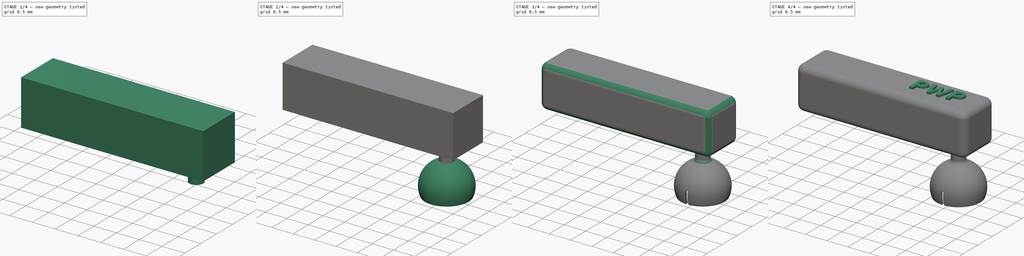
[diagram: build sequence overview — one tinted view per stage of 4, left to right]
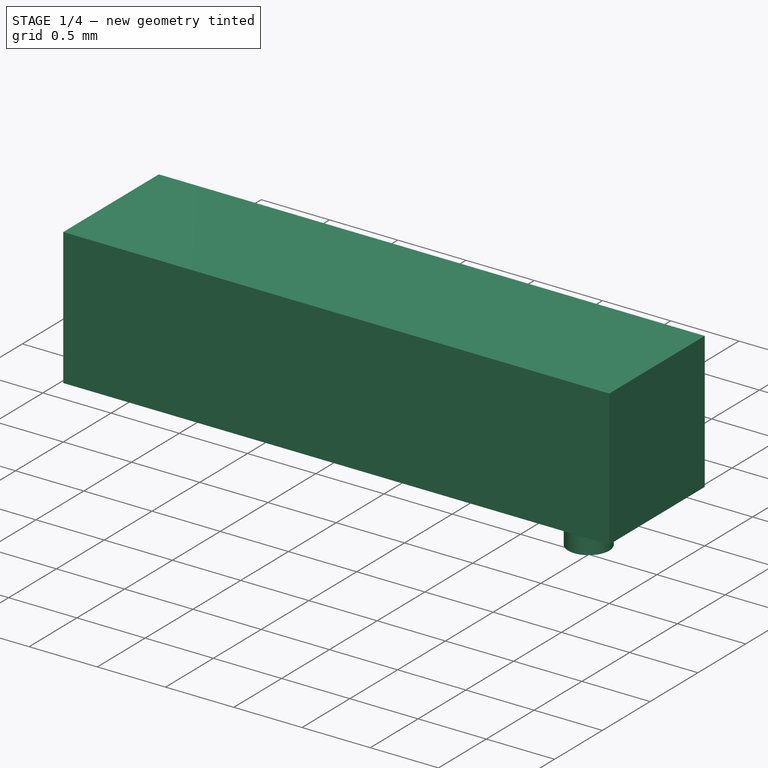
[diagram: stage 1 of 4 — iso view after this stage's code; geometry added in this stage tinted green]
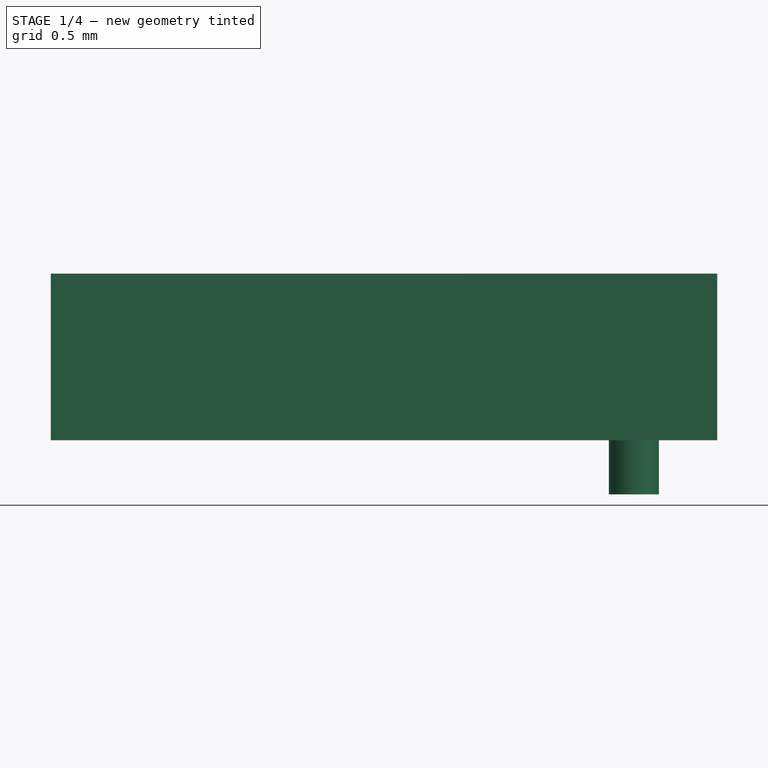
[diagram: stage 1 of 4 — front view after this stage's code; geometry added in this stage tinted green]
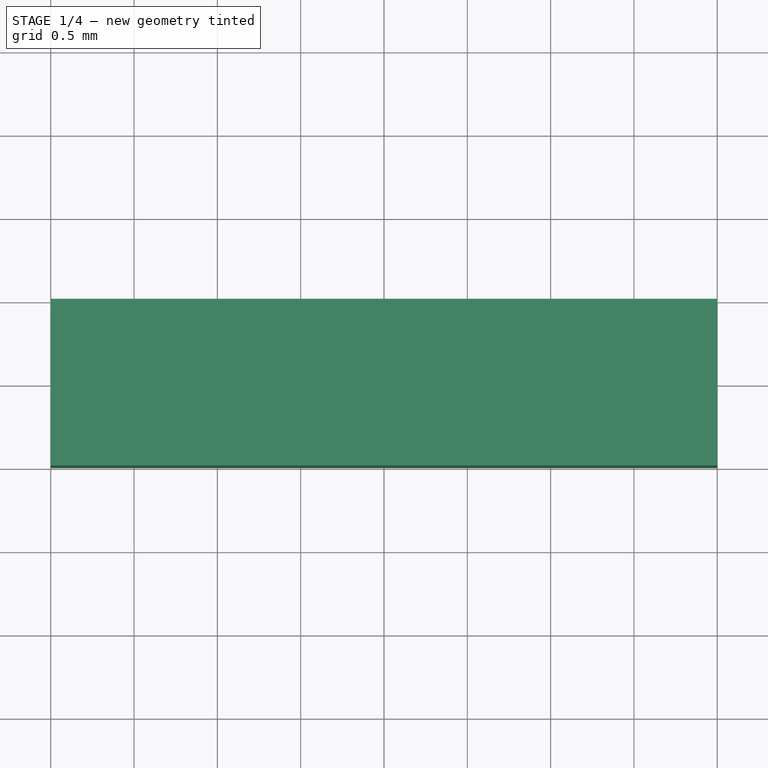
[diagram: stage 1 of 4 — top view after this stage's code; geometry added in this stage tinted green]
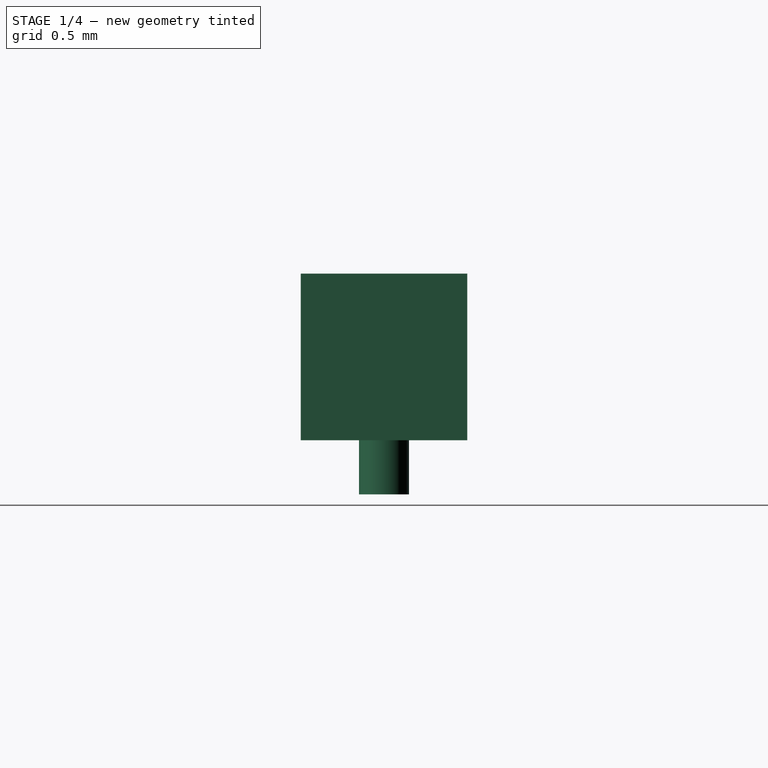
[diagram: stage 1 of 4 — right view after this stage's code; geometry added in this stage tinted green]
FCSTD DOCUMENT  (FreeCAD 0.20R29177 (Git))
Label: pwp
License: All rights reserved
LicenseURL: http://en.wikipedia.org/wiki/All_rights_reserved
objects: Sketcher::SketchObject×5, PartDesign::Line×3, PartDesign::Fillet×3, PartDesign::Pad×2, PartDesign::Revolution×2, Spreadsheet::Sheet×1, PartDesign::Plane×1, PartDesign::Groove×1, PartDesign::Pocket×1, Part::Part2DObjectPython×1, PartDesign::Body×1
note: 29 computed .brp shape members not serialized (recipe doc carries the construction recipe); baked Part::Feature solids carry a one-line shape summary decoded from their .brp

FEATURE [Spreadsheet::Sheet] Spreadsheet
  cells = A2=Design Parameters; A3=RefLength; B3(RefLength)==1mm; A4=Length; B4(Length)==4 * RefLength; A5=Width; B5(Width)==RefLength; A6=Height; B6(Height)==RefLength; A7=BallJointDiam; B7(BallJointDiam)==1 * RefLength; A8=BallJointDiamMargin; B8(BallJointDiamMargin)==0.005 * BallJointDiam; A9=BallJointCupThickness; B9(BallJointCupThickness)==0.05 * RefLength; A10=BallJointCupDiam; B10(BallJointCupDiam)==BallJointDiam + 2 * BallJointDiamMargin; A11=BallJointConnLength; B11(BallJointConnLength)==0.3 * RefLength; A12=BallJointConnDiam; B12(BallJointConnDiam)==0.3 * RefLength; A13=BallJointDatumPlaneOffset; B13(BallJointDatumPlaneOffset)==0.5 * Length - 0.5 * BallJointDiam; A14=BallJointCupRevolveCutAngle; B14(BallJointCupRevolveCutAngle)==135deg; A15=BallJointCupRevolveCutMargin; B15(BallJointCupRevolveCutMargin)==0.1 * RefLength; A16=BallJointCupRevolveCutLength; B16(BallJointCupRevolveCutLength)==0.5 * BallJointDiam + BallJointCupThickness + BallJointCupRevolveCutMargin; A17=BallJointCupSlitWidth; B17(BallJointCupSlitWidth)==0.05 * RefLength; A18=BallJointCupSlitDepth; B18(BallJointCupSlitDepth)==0.1 * RefLength; C18=Depth past midline; A19=EdgeFilletRadius; B19(EdgeFilletRadius)==0.15 * RefLength; A20=BallJointConnFilletRadius; B20(BallJointConnFilletRadius)==0.1 * RefLength; A21=BallJointCupFilletRadius; B21(BallJointCupFilletRadius)==0.012 * RefLength; A22=LabelString; B22(LabelString)=PWP; A23=LabelPadHeight; B23(LabelPadHeight)==0.05 * RefLength
FEATURE [Sketcher::SketchObject] Sketch  label="MainBeamSketch"
  FullyConstrained = true
  MapMode = 5
  Support = -> [XY_Plane]
  expr: Constraints[10] = Spreadsheet.Width
  expr: Constraints[9] = Spreadsheet.Length
  sketch-geometry (4):
    g0: LineSegment StartX=-2 StartY=0.5 StartZ=0 EndX=2 EndY=0.5 EndZ=0
    g1: LineSegment StartX=2 StartY=0.5 StartZ=0 EndX=2 EndY=-0.5 EndZ=0
    g2: LineSegment StartX=2 StartY=-0.5 StartZ=0 EndX=-2 EndY=-0.5 EndZ=0
    g3: LineSegment StartX=-2 StartY=-0.5 StartZ=0 EndX=-2 EndY=0.5 EndZ=0
  constraints (11):
    c: Coincident(g0,g1)
    c: Coincident(g1,g2)
    c: Coincident(g2,g3)
    c: Coincident(g3,g0)
    c: Horizontal(g0)
    c: Horizontal(g2)
    c: Vertical(g1)
    c: Vertical(g3)
    c: Symmetric(g0,g1,g-1)
    c: DistanceX(g2,g2) = 4
    c: DistanceY(g1,g1) = 1
FEATURE [PartDesign::Pad] Pad  label="MainBeamPad"
  Direction = (0,0,1)
  Length = 1
  Length2 = 10
  Midplane = true
  Profile = -> Sketch
  ReferenceAxis = -> Sketch [N_Axis]
  Type = 0
  expr: Length = Spreadsheet.Height
FEATURE [PartDesign::Plane] DatumPlane  label="BallJointDatumPlane"
  AttachmentOffset = pos=(0,0,1.5) rot=(0,0,1;0rad)
  Length = 60
  MapMode = 5
  Placement = pos=(1.5,-3e-16,3e-16) rot=(0.57735,0.57735,0.57735;2.0944rad)
  ResizeMode = 0
  Support = -> [YZ_Plane]
  Width = 60
  expr: .AttachmentOffset.Base.z = Spreadsheet.BallJointDatumPlaneOffset
FEATURE [Sketcher::SketchObject] Sketch001  label="BallJontConnSketch"
  FullyConstrained = true
  MapMode = 5
  Placement = pos=(1.5,-3e-16,3e-16) rot=(0.57735,0.57735,0.57735;2.0944rad)
  Support = -> [DatumPlane]
  expr: Constraints[17] = Spreadsheet.BallJointConnLength
  expr: Constraints[18] = Spreadsheet.BallJointConnDiam * 0.5
  expr: Constraints[19] = Spreadsheet.BallJointCupThickness * 0.5
  expr: Constraints[2] = Spreadsheet.Height * 0.5
  sketch-geometry (7):
    g0: LineSegment StartX=0 StartY=0 StartZ=0 EndX=0 EndY=-0.5 EndZ=0
    g1: LineSegment StartX=0 StartY=-0.5 StartZ=0 EndX=0.15 EndY=-0.5 EndZ=0
    g2: LineSegment StartX=0.15 StartY=-0.5 StartZ=0 EndX=0.15 EndY=-0.8 EndZ=0
    g3: LineSegment StartX=0 StartY=-0.8 StartZ=0 EndX=0 EndY=-0.5 EndZ=0
    g4: LineSegment StartX=0 StartY=-0.8 StartZ=0 EndX=0 EndY=-0.825 EndZ=0
    g5: LineSegment StartX=0 StartY=-0.825 StartZ=0 EndX=0.15 EndY=-0.825 EndZ=0
    g6: LineSegment StartX=0.15 StartY=-0.825 StartZ=0 EndX=0.15 EndY=-0.8 EndZ=0
  constraints (20):
    c: Vertical(g0)
    c: Coincident(g0,g-1)
    c: DistanceY(g0,g0) = 0.5
    c: Coincident(g1,g2)
    c: Coincident(g3,g1)
    c: Horizontal(g1)
    c: Vertical(g2)
    c: Vertical(g3)
    c: Coincident(g1,g0)
    c: Vertical(g4)
    c: Coincident(g4,g5)
    c: Horizontal(g5)
    c: Coincident(g5,g6)
    c: Vertical(g6)
    c: Coincident(g4,g3)
    c: Coincident(g6,g2)
    c: Equal(g3,g2)
    c: DistanceY(g2,g2) = 0.3
    c: DistanceX(g1,g1) = 0.15
    c: DistanceY(g6,g6) = 0.025
FEATURE [PartDesign::Line] DatumLine  label="BallJointConnRevolveDatumLine"
  AttacherType = Attacher::AttachEngineLine
  Length = 20
  MapMode = 29
  Placement = pos=(1.5,-3e-16,3e-16) rot=(0,0,1;0rad)
  ResizeMode = 0
  Support = -> [Sketch001]
FEATURE [PartDesign::Revolution] Revolution  label="BallJointConnRevolution"
  Angle = 360
  Axis = (0,1e-16,1)
  Base = (1.5,-3e-16,3e-16)
  BaseFeature = -> Pad
  Profile = -> Sketch001
  ReferenceAxis = -> DatumLine
  Reversed = true
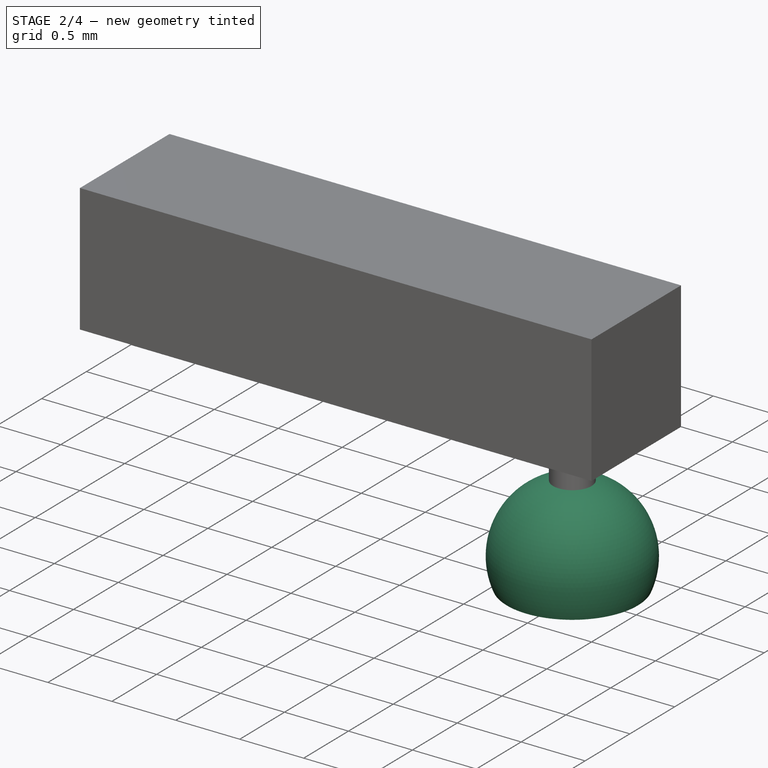
[diagram: stage 2 of 4 — iso view after this stage's code; geometry added in this stage tinted green]
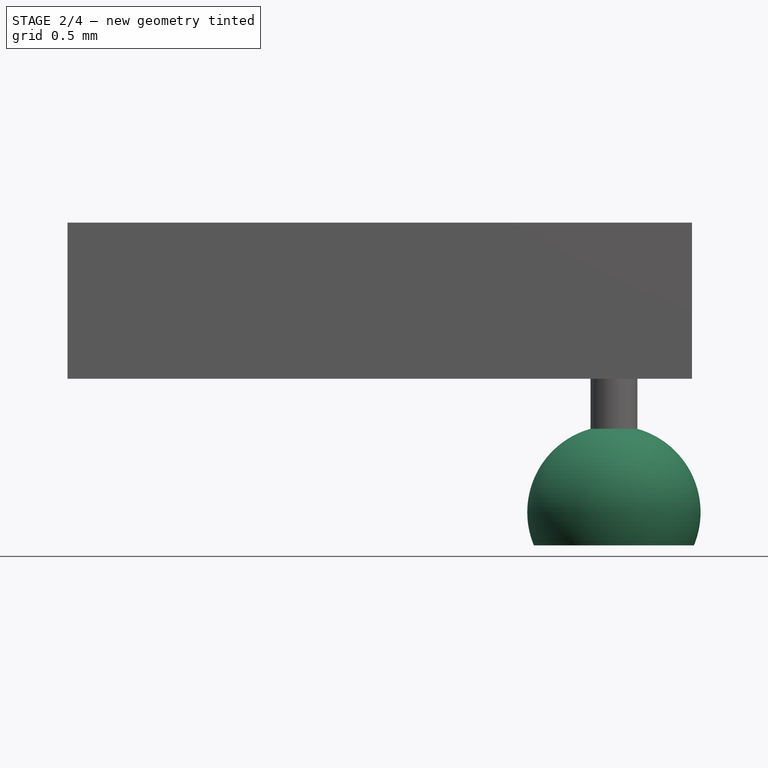
[diagram: stage 2 of 4 — front view after this stage's code; geometry added in this stage tinted green]
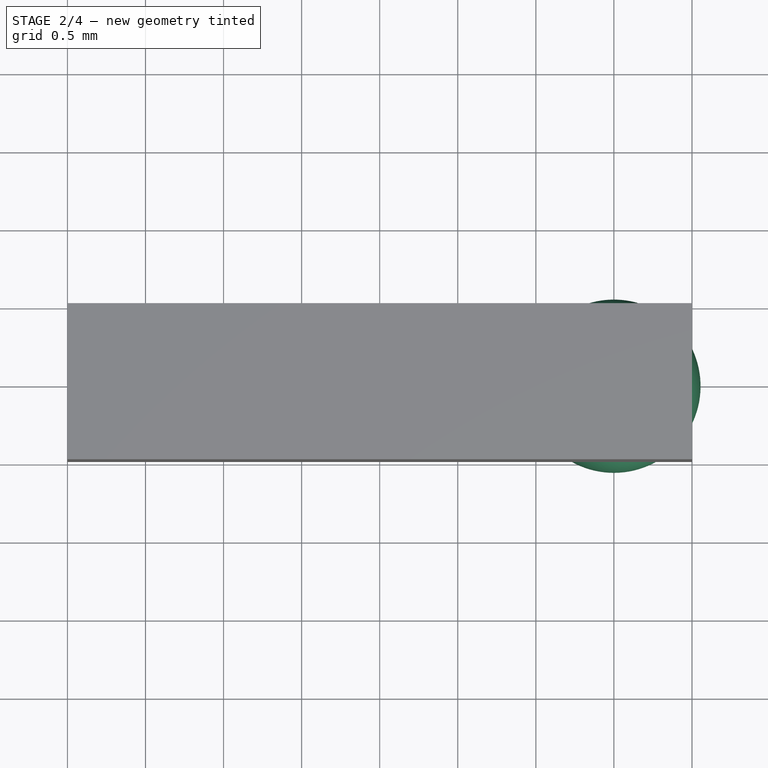
[diagram: stage 2 of 4 — top view after this stage's code; geometry added in this stage tinted green]
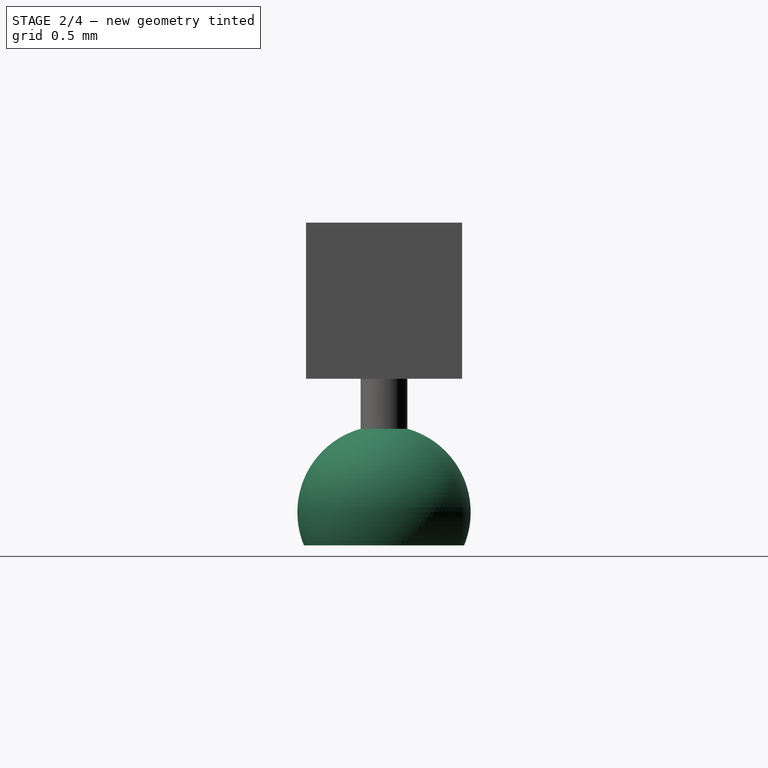
[diagram: stage 2 of 4 — right view after this stage's code; geometry added in this stage tinted green]
FEATURE [Sketcher::SketchObject] Sketch002  label="BallJointCupSketch"
  FullyConstrained = true
  MapMode = 5
  Placement = pos=(1.5,-3e-16,3e-16) rot=(0.57735,0.57735,0.57735;2.0944rad)
  Support = -> [DatumPlane]
  expr: Constraints[14] = Spreadsheet.BallJointCupThickness
  expr: Constraints[17] = Spreadsheet.BallJointCupDiam
  expr: Constraints[2] = Spreadsheet.Height * 0.5
  expr: Constraints[5] = Spreadsheet.BallJointConnLength
  sketch-geometry (6):
    g0: LineSegment StartX=2e-16 StartY=0 StartZ=0 EndX=2e-16 EndY=-0.5 EndZ=0
    g1: LineSegment StartX=2e-16 StartY=-0.5 StartZ=0 EndX=2e-16 EndY=-0.8 EndZ=0
    g2: LineSegment StartX=2e-16 StartY=-0.8 StartZ=0 EndX=2e-16 EndY=-0.85 EndZ=0
    g3: ArcOfCircle CenterX=0 CenterY=-1.355 CenterZ=0 NormalX=0 NormalY=0 NormalZ=1 AngleXU=0 Radius=0.505 StartAngle=4.71239 EndAngle=7.85398
    g4: ArcOfCircle CenterX=0 CenterY=-1.355 CenterZ=0 NormalX=0 NormalY=0 NormalZ=1 AngleXU=0 Radius=0.555 StartAngle=4.71239 EndAngle=7.85398
    g5: LineSegment StartX=-1e-16 StartY=-1.86 StartZ=0 EndX=-1e-16 EndY=-1.91 EndZ=0
  constraints (18):
    c: Vertical(g0)
    c: Coincident(g0,g-1)
    c: DistanceY(g0,g0) = 0.5
    c: Vertical(g1)
    c: Coincident(g1,g0)
    c: DistanceY(g1,g1) = 0.3
    c: Vertical(g2)
    c: Coincident(g1,g2)
    c: PointOnObject(g3,g-2)
    c: Coincident(g3,g2)
    c: PointOnObject(g3,g-2)
    c: Coincident(g3,g4)
    c: Coincident(g4,g2)
    c: PointOnObject(g4,g-2)
    c: DistanceY(g2,g2) = 0.05
    c: Coincident(g5,g3)
    c: Coincident(g5,g4)
    c: DistanceY(g3,g2) = 1.01
FEATURE [PartDesign::Line] DatumLine001  label="BallJointCupRevolveDatumLine"
  AttacherType = Attacher::AttachEngineLine
  Length = 20
  MapMode = 29
  Placement = pos=(1.5,0,3e-16) rot=(0,1,0;3.14159rad)
  ResizeMode = 0
  Support = -> [Sketch002]
FEATURE [PartDesign::Revolution] Revolution001  label="BallJointCupRevolution"
  Angle = 360
  Axis = (2e-16,-4e-16,-1)
  Base = (1.5,0,3e-16)
  BaseFeature = -> Revolution
  Profile = -> Sketch002
  ReferenceAxis = -> DatumLine001
  Reversed = true
FEATURE [Sketcher::SketchObject] Sketch003  label="BallJointRevolveCutSketch"
  FullyConstrained = true
  MapMode = 5
  Placement = pos=(1.5,-3e-16,3e-16) rot=(0.57735,0.57735,0.57735;2.0944rad)
  Support = -> [DatumPlane]
  expr: Constraints[10] = Spreadsheet.BallJointCupThickness
  expr: Constraints[11] = Spreadsheet.BallJointCupDiam * 0.5
  expr: Constraints[18] = Spreadsheet.BallJointCupRevolveCutAngle * 0.5
  expr: Constraints[19] = Spreadsheet.BallJointCupRevolveCutLength
  expr: Constraints[8] = Spreadsheet.Height * 0.5
  expr: Constraints[9] = Spreadsheet.BallJointConnLength
  sketch-geometry (7):
    g0: LineSegment StartX=0 StartY=0 StartZ=0 EndX=0 EndY=-0.5 EndZ=0
    g1: LineSegment StartX=0 StartY=-0.5 StartZ=0 EndX=0 EndY=-0.8 EndZ=0
    g2: LineSegment StartX=0 StartY=-0.8 StartZ=0 EndX=0 EndY=-0.85 EndZ=0
    g3: LineSegment StartX=0 StartY=-0.85 StartZ=0 EndX=0 EndY=-1.355 EndZ=0
    g4: LineSegment StartX=0 StartY=-1.355 StartZ=0 EndX=0 EndY=-1.60374 EndZ=0
    g5: LineSegment StartX=0 StartY=-1.60374 StartZ=0 EndX=0.600522 EndY=-1.60374 EndZ=0
    g6: LineSegment StartX=0.600522 StartY=-1.60374 StartZ=0 EndX=0 EndY=-1.355 EndZ=0
  constraints (20):
    c: Vertical(g0)
    c: Coincident(g0,g1)
    c: Vertical(g1)
    c: Coincident(g1,g2)
    c: Vertical(g2)
    c: Coincident(g2,g3)
    c: Vertical(g3)
    c: Coincident(g0,g-1)
    c: DistanceY(g0,g0) = 0.5
    c: DistanceY(g1,g1) = 0.3
    c: DistanceY(g2,g2) = 0.05
    c: DistanceY(g3,g3) = 0.505
    c: Vertical(g4)
    c: Coincident(g4,g5)
    c: Horizontal(g5)
    c: Coincident(g5,g6)
    c: Coincident(g6,g4)
    c: Coincident(g4,g3)
    c: Angle(g4,g6) = 1.1781
    c: Distance(g6) = 0.65
FEATURE [PartDesign::Line] DatumLine002  label="BallJointRevolveCutDatumLine"
  AttacherType = Attacher::AttachEngineLine
  Length = 20
  MapMode = 29
  Placement = pos=(1.5,-3e-16,2e-16) rot=(0,1,0;3.14159rad)
  ResizeMode = 0
  Support = -> [Sketch003]
FEATURE [PartDesign::Groove] Groove  label="BallJointRevolveCutGroove"
  Angle = 360
  Axis = (0,-1e-16,-1)
  Base = (1.5,-3e-16,2e-16)
  BaseFeature = -> Revolution001
  Profile = -> Sketch003
  ReferenceAxis = -> DatumLine002
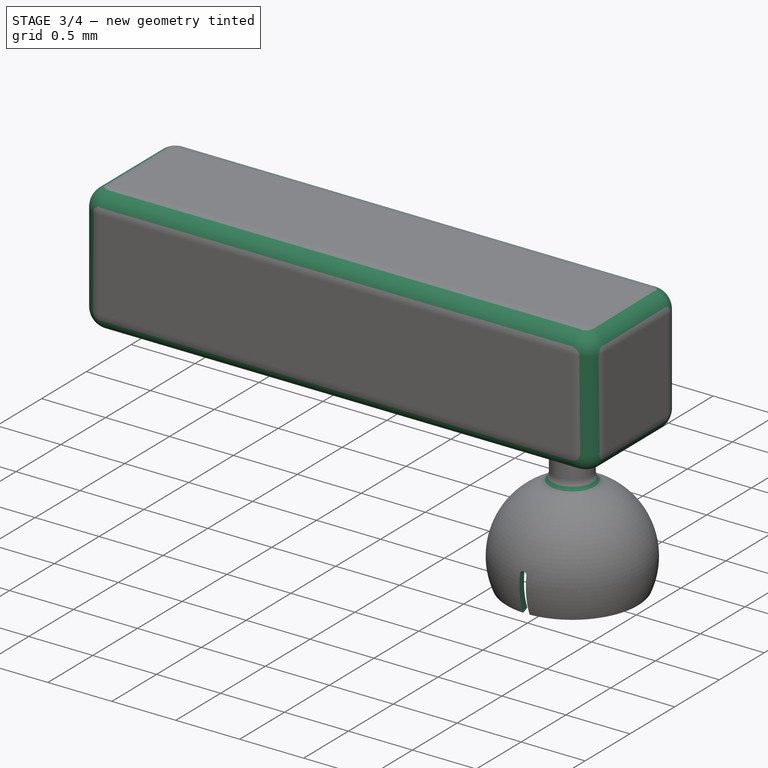
[diagram: stage 3 of 4 — iso view after this stage's code; geometry added in this stage tinted green]
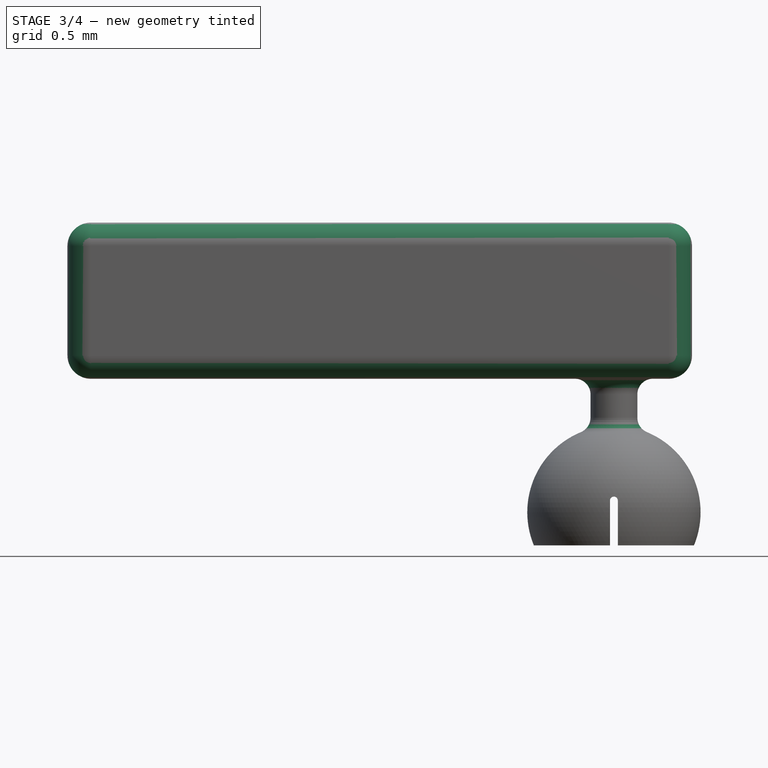
[diagram: stage 3 of 4 — front view after this stage's code; geometry added in this stage tinted green]
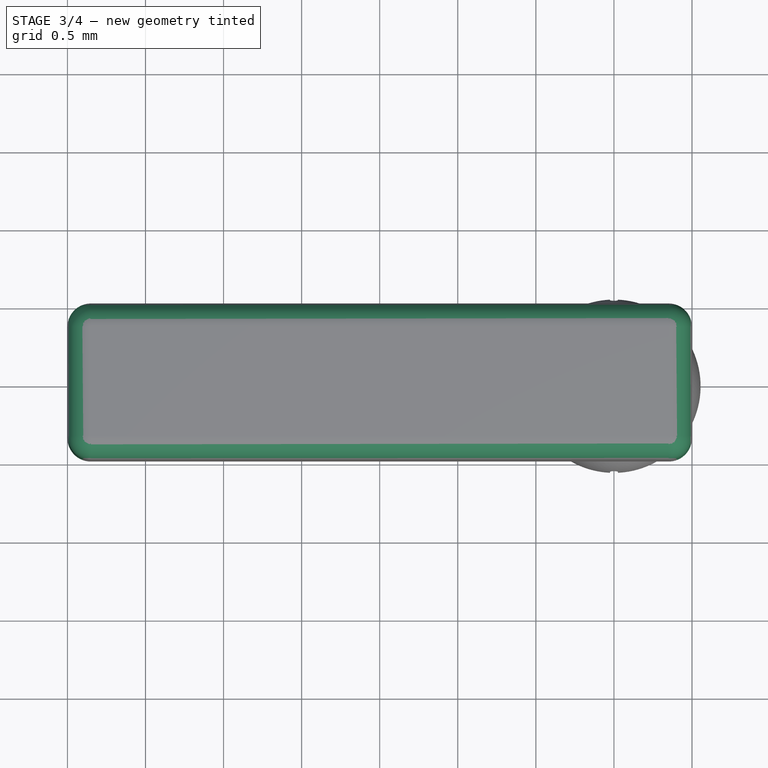
[diagram: stage 3 of 4 — top view after this stage's code; geometry added in this stage tinted green]
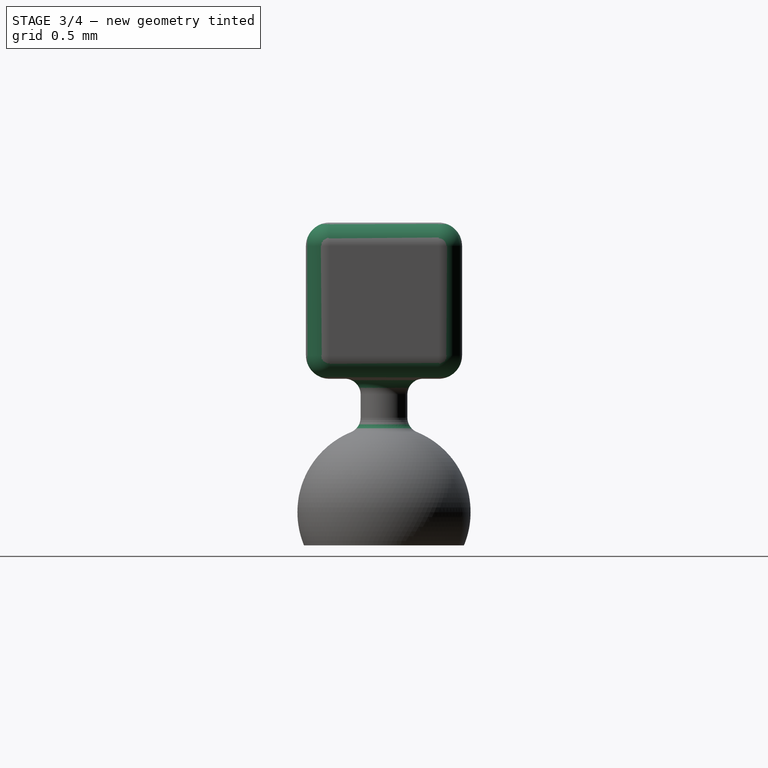
[diagram: stage 3 of 4 — right view after this stage's code; geometry added in this stage tinted green]
FEATURE [Sketcher::SketchObject] Sketch004  label="BallJointCupSlitSketch"
  FullyConstrained = true
  MapMode = 5
  Placement = pos=(0,0,0) rot=(1,0,0;1.5708rad)
  Support = -> [XZ_Plane]
  expr: Constraints[12] = Spreadsheet.BallJointConnLength
  expr: Constraints[13] = Spreadsheet.BallJointCupThickness
  expr: Constraints[14] = Spreadsheet.BallJointCupDiam * 0.5
  expr: Constraints[38] = Spreadsheet.BallJointCupSlitDepth
  expr: Constraints[39] = Spreadsheet.BallJointCupSlitWidth
  expr: Constraints[40] = Spreadsheet.BallJointCupDiam
  expr: Constraints[4] = Spreadsheet.BallJointDatumPlaneOffset
  expr: Constraints[5] = Spreadsheet.Height * 0.5
  sketch-geometry (14):
    g0: LineSegment StartX=0 StartY=0 StartZ=0 EndX=1.5 EndY=0 EndZ=0
    g1: LineSegment StartX=1.5 StartY=0 StartZ=0 EndX=1.5 EndY=-0.5 EndZ=0
    g2: LineSegment StartX=1.5 StartY=-0.5 StartZ=0 EndX=1.5 EndY=-0.8 EndZ=0
    g3: LineSegment StartX=1.5 StartY=-0.8 StartZ=0 EndX=1.5 EndY=-0.85 EndZ=0
    g4: LineSegment StartX=1.5 StartY=-0.85 StartZ=0 EndX=1.5 EndY=-1.355 EndZ=0
    g5: LineSegment StartX=1.475 StartY=-1.28 StartZ=0 EndX=1.475 EndY=-1.355 EndZ=0
    g6: LineSegment StartX=1.475 StartY=-1.355 StartZ=0 EndX=1.475 EndY=-2.365 EndZ=0
    g7: LineSegment StartX=1.475 StartY=-2.365 StartZ=0 EndX=1.525 EndY=-2.365 EndZ=0
    g8: LineSegment StartX=1.525 StartY=-2.365 StartZ=0 EndX=1.525 EndY=-1.355 EndZ=0
    g9: LineSegment StartX=1.525 StartY=-1.355 StartZ=0 EndX=1.525 EndY=-1.28 EndZ=0
    g10: ArcOfCircle CenterX=1.5 CenterY=-1.28 CenterZ=0 NormalX=0 NormalY=0 NormalZ=1 AngleXU=0 Radius=0.025 StartAngle=5.8e-15 EndAngle=3.14159
    g11: LineSegment StartX=1.475 StartY=-1.28 StartZ=0 EndX=1.525 EndY=-1.28 EndZ=0
    g12: LineSegment StartX=1.475 StartY=-1.355 StartZ=0 EndX=1.525 EndY=-1.355 EndZ=0
    g13: LineSegment StartX=1.5 StartY=-1.255 StartZ=0 EndX=1.5 EndY=-1.28 EndZ=0
  constraints (41):
    c: Horizontal(g0)
    c: Coincident(g-1,g0)
    c: Vertical(g1)
    c: Coincident(g0,g1)
    c: DistanceX(g0,g0) = 1.5
    c: DistanceY(g1,g1) = 0.5
    c: Coincident(g2,g1)
    c: Vertical(g2)
    c: Coincident(g3,g2)
    c: Vertical(g3)
    c: Coincident(g4,g3)
    c: Vertical(g4)
    c: DistanceY(g2,g2) = 0.3
    c: DistanceY(g3,g3) = 0.05
    c: DistanceY(g4,g4) = 0.505
    c: Vertical(g5)
    c: Coincident(g5,g6)
    c: Vertical(g6)
    c: Coincident(g6,g7)
    c: Horizontal(g7)
    c: Coincident(g7,g8)
    c: Vertical(g8)
    c: Coincident(g8,g9)
    c: Vertical(g9)
    c: Coincident(g5,g10)
    c: Coincident(g10,g9)
    c: Coincident(g11,g5)
    c: Horizontal(g11)
    c: PointOnObject(g10,g11)
    c: Coincident(g11,g9)
    c: PointOnObject(g10,g4)
    c: Horizontal(g12)
    c: Coincident(g12,g5)
    c: Coincident(g12,g8)
    c: PointOnObject(g4,g12)
    c: Vertical(g13)
    c: Coincident(g13,g10)
    c: PointOnObject(g13,g10)
    c: DistanceY(g4,g13) = 0.1
    c: DistanceX(g6,g7) = 0.05
    c: DistanceY(g6,g6) = 1.01
FEATURE [PartDesign::Pocket] Pocket  label="BallJointCupSlitPocket"
  BaseFeature = -> Groove
  Direction = (0,1,2e-16)
  Length = 5
  Length2 = 5
  Midplane = true
  Profile = -> Sketch004
  ReferenceAxis = -> Sketch004 [N_Axis]
  Type = 1
FEATURE [PartDesign::Fillet] Fillet  label="MainBeamEdgeFillet"
  Base = -> Pocket [Face5,Face6,Face1,Edge9,Edge6]
  BaseFeature = -> Pocket
  Radius = 0.15
  SupportTransform = false
  UseAllEdges = false
  expr: Radius = Spreadsheet.EdgeFilletRadius
FEATURE [PartDesign::Fillet] Fillet001  label="BallJointConnFillet"
  Base = -> Fillet [Edge37,Edge60]
  BaseFeature = -> Fillet
  Radius = 0.1
  SupportTransform = false
  UseAllEdges = false
  expr: Radius = Spreadsheet.BallJointConnFilletRadius
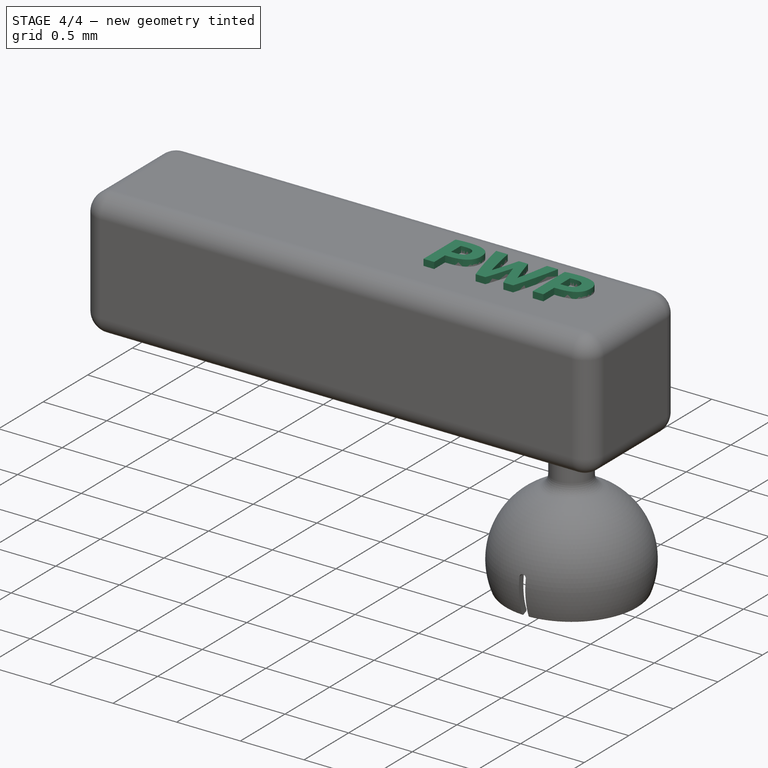
[diagram: stage 4 of 4 — iso view after this stage's code; geometry added in this stage tinted green]
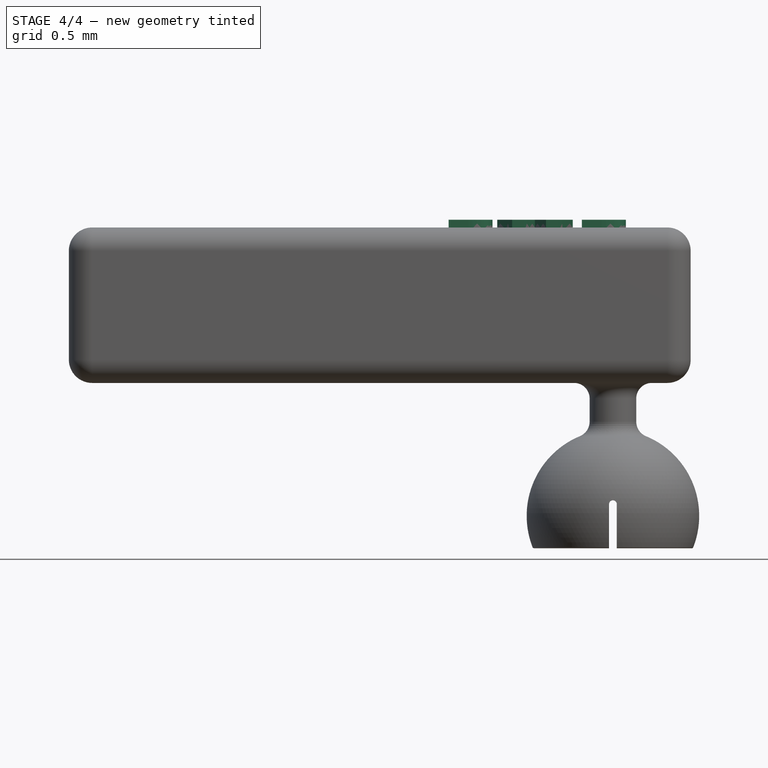
[diagram: stage 4 of 4 — front view after this stage's code; geometry added in this stage tinted green]
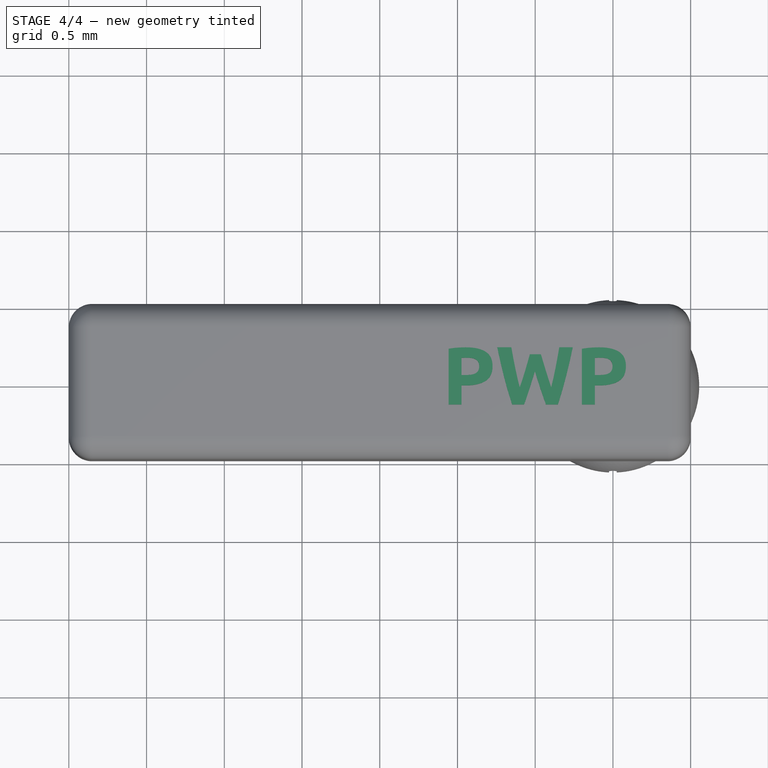
[diagram: stage 4 of 4 — top view after this stage's code; geometry added in this stage tinted green]
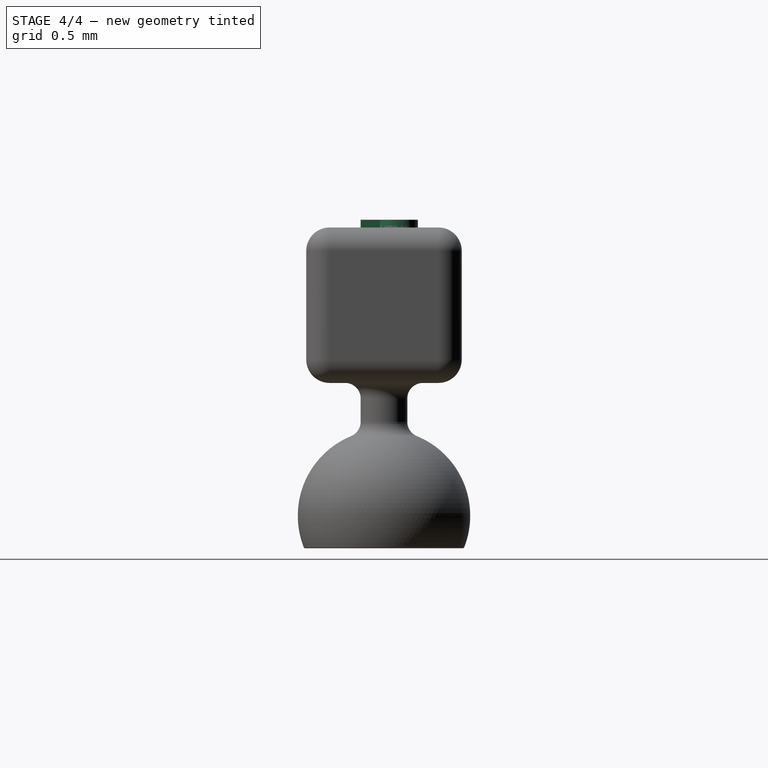
[diagram: stage 4 of 4 — right view after this stage's code; geometry added in this stage tinted green]
FEATURE [PartDesign::Fillet] Fillet002  label="BallJointCupFillet"
  Base = -> Fillet001 [Edge69,Edge94,Edge89,Edge66]
  BaseFeature = -> Fillet001
  Radius = 0.012
  SupportTransform = false
  UseAllEdges = false
  expr: Radius = Spreadsheet.BallJointCupFilletRadius
FEATURE [Part::Part2DObjectPython] ShapeString  label="LabelShapeString"  # Draft 2D object (typed FeaturePython)
  FontFile = ./font/Ubuntu-B.ttf
  MakeFace = true
  Placement = pos=(0.4,-0.15,0.5) rot=(0,0,1;0rad)
  Size = 0.2
  String = PWP
  Tracking = 0
  expr: .Placement.Base.x = Spreadsheet.RefLength * 0.4
  expr: .Placement.Base.y = Spreadsheet.RefLength * -0.15
  expr: .Placement.Base.z = Spreadsheet.RefLength * 0.5
  expr: String = Spreadsheet.LabelString
FEATURE [PartDesign::Pad] Pad001  label="LabelPad"
  BaseFeature = -> Fillet002
  Direction = (0,0,1)
  Length = 0.05
  Length2 = 10
  Profile = -> ShapeString
  ReferenceAxis = -> ShapeString [N_Axis]
  Type = 0
  expr: Length = Spreadsheet.LabelPadHeight
FEATURE [PartDesign::Body] Body
  Group = -> [Sketch,Pad,DatumPlane,Sketch001,DatumLine,Revolution,Sketch002,DatumLine001,Revolution001,Sketch003,DatumLine002,Groove,Sketch004,Pocket,Fillet,Fillet001,Fillet002,ShapeString,Pad001]
  Origin = -> Origin
  Tip = -> Pad001
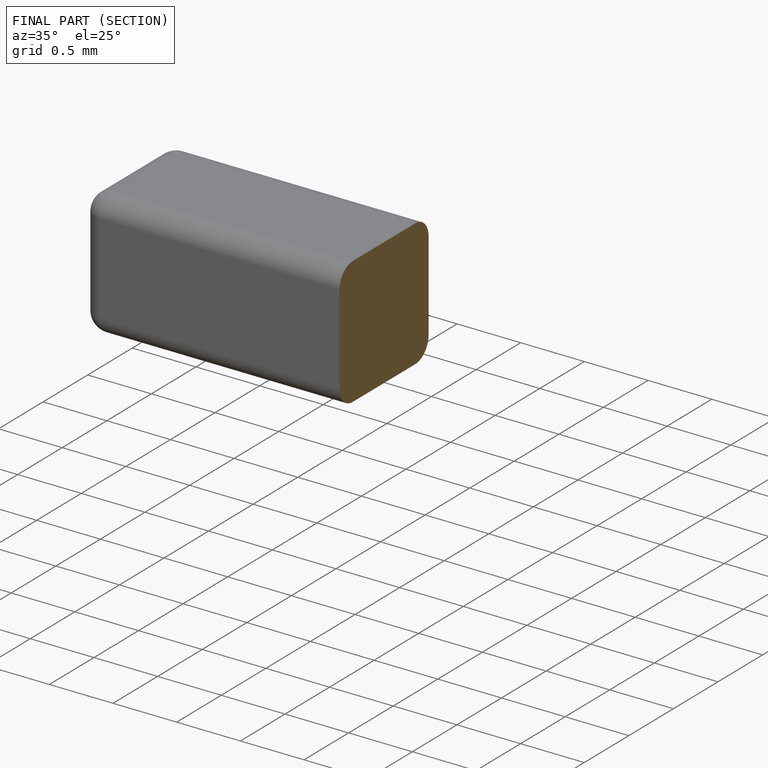
[diagram: finished part — half-section view (interior)]
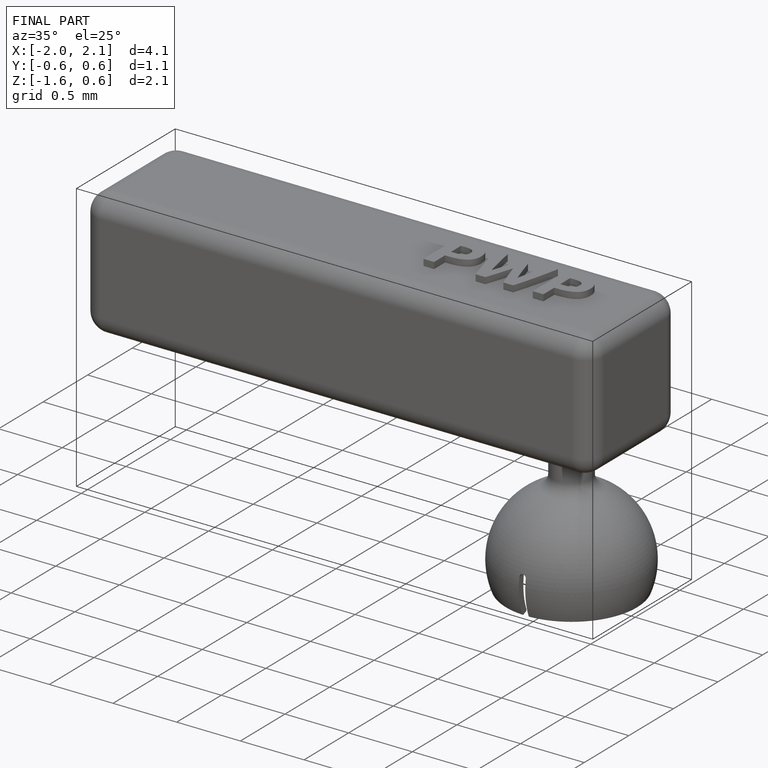
[diagram: finished part — iso view with bounding-box wireframe]
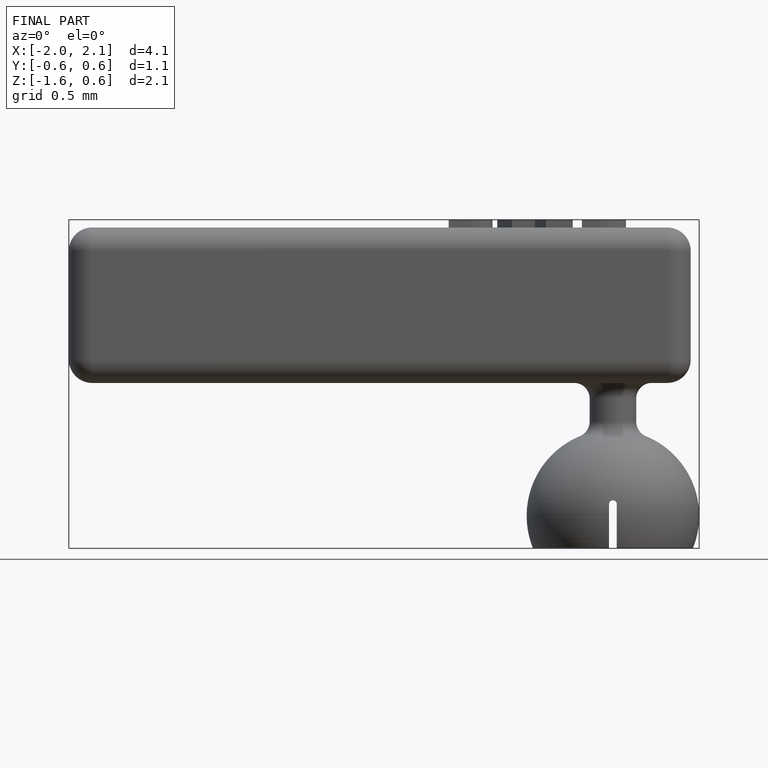
[diagram: finished part — front view with bounding-box wireframe]
